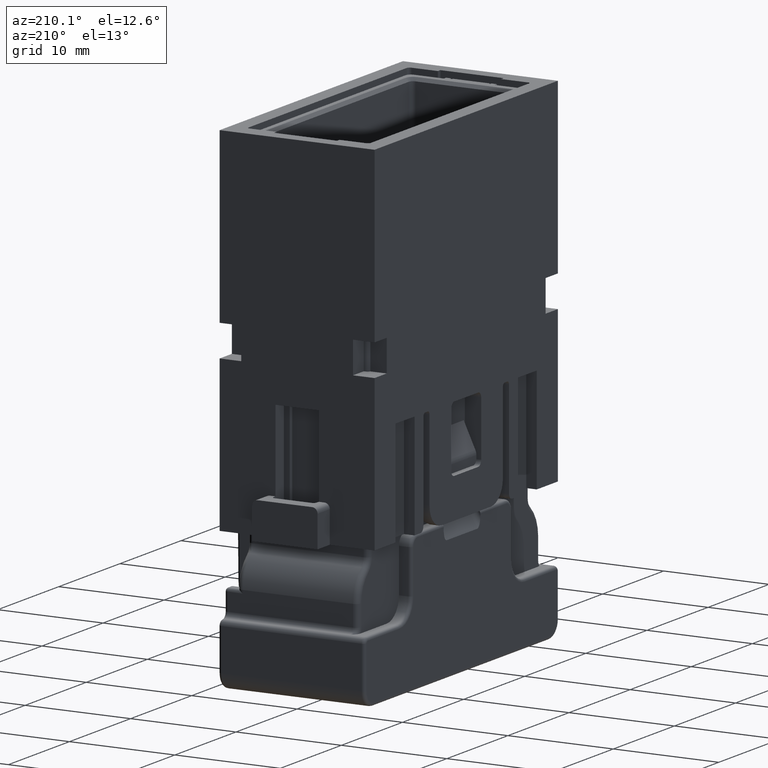
[diagram: clean part render]
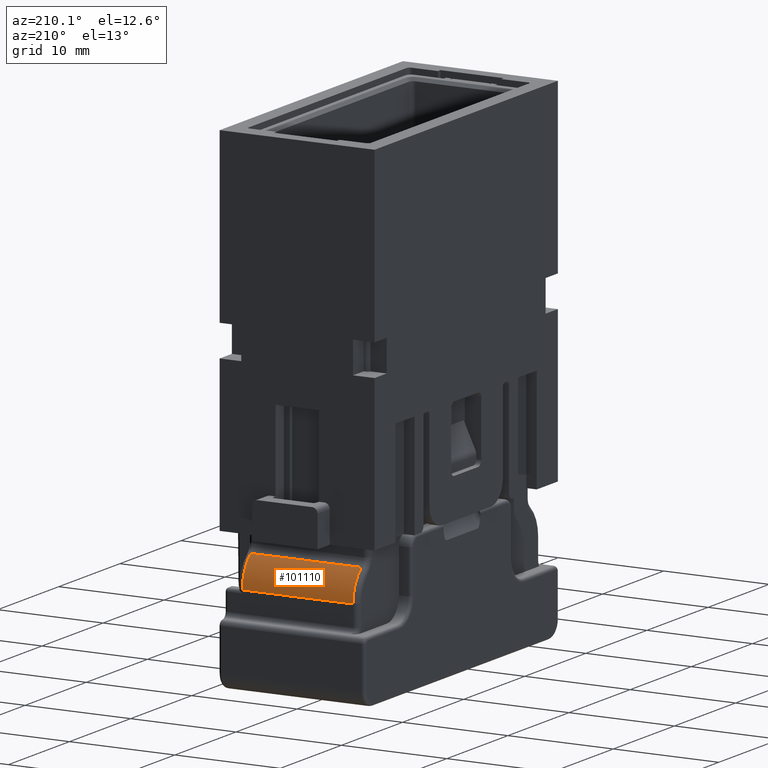
[diagram: same view with one face highlighted and labeled with its STEP entity id]
A machine part, auxiliary view. The second image highlights one B-rep face of the part: STEP entity #101110.
In plain terms, the highlighted cylindrical surface (partial cylindrical patch) has radius 3.6 mm, axis along (1, 0, -0).
Its self-contained STEP definition (entity closure, byte-faithful):
#9870=CARTESIAN_POINT('',(74.3250000000158,53.1999999999852,
-33.9397509007332));
#9880=DIRECTION('',(2.22044604925032E-16,-1.,-2.73691106313441E-48));
#9890=VECTOR('',#9880,1.);
#9900=LINE('',#9870,#9890);
#9910=CARTESIAN_POINT('',(74.3250000000158,64.1999999217726,
-33.9397509007332));
#9920=VERTEX_POINT('',#9910);
#9930=CARTESIAN_POINT('',(74.3250000000158,53.6999999999852,
-33.9397509007332));
#9940=VERTEX_POINT('',#9930);
#9950=EDGE_CURVE('',#9920,#9940,#9900,.T.);
#34340=CARTESIAN_POINT('',(72.075,53.6999999999852,-36.7499999999999));
#34350=DIRECTION('',(2.22044604925032E-16,-1.,-2.73691106313441E-48));
#34360=DIRECTION('',(-1.,-2.22044604925032E-16,0.));
#34370=AXIS2_PLACEMENT_3D('',#34340,#34350,#34360);
#34380=CIRCLE('',#34370,3.6);
#34390=CARTESIAN_POINT('',(75.675,53.6999999999852,-36.7499999999999));
#34400=VERTEX_POINT('',#34390);
#34410=EDGE_CURVE('',#34400,#9940,#34380,.T.);
#35870=CARTESIAN_POINT('',(75.675,53.1999999999852,-36.7499999999999));
#35880=DIRECTION('',(1.11022302462516E-16,-1.,-2.0165614595043E-32));
#35890=VECTOR('',#35880,1.);
#35900=LINE('',#35870,#35890);
#35910=CARTESIAN_POINT('',(75.6750000000029,64.1999999217727,
-36.7499999999999));
#35920=VERTEX_POINT('',#35910);
#35930=EDGE_CURVE('',#35920,#34400,#35900,.T.);
#58610=CARTESIAN_POINT('',(72.075,64.1999999217726,-36.7499999999999));
#58620=DIRECTION('',(2.22044604925032E-16,-1.,-2.73691106313441E-48));
#58630=DIRECTION('',(-1.,-2.22044604925032E-16,0.));
#58640=AXIS2_PLACEMENT_3D('',#58610,#58620,#58630);
#58650=CIRCLE('',#58640,3.6);
#58660=EDGE_CURVE('',#35920,#9920,#58650,.T.);
#101000=CARTESIAN_POINT('',(72.075,53.1999999999852,-36.7499999999999));
#101010=DIRECTION('',(2.22044604925032E-16,-1.,-2.73691106313441E-48));
#101020=DIRECTION('',(8.61512651293919E-17,1.91294236294475E-32,1.));
#101030=AXIS2_PLACEMENT_3D('',#101000,#101010,#101020);
#101040=CYLINDRICAL_SURFACE('',#101030,3.6);
#101050=ORIENTED_EDGE('',*,*,#35930,.F.);
#101060=ORIENTED_EDGE('',*,*,#34410,.F.);
#101070=ORIENTED_EDGE('',*,*,#9950,.T.);
#101080=ORIENTED_EDGE('',*,*,#58660,.T.);
#101090=EDGE_LOOP('',(#101080,#101070,#101060,#101050));
#101100=FACE_OUTER_BOUND('',#101090,.T.);
#101110=ADVANCED_FACE('',(#101100),#101040,.T.);